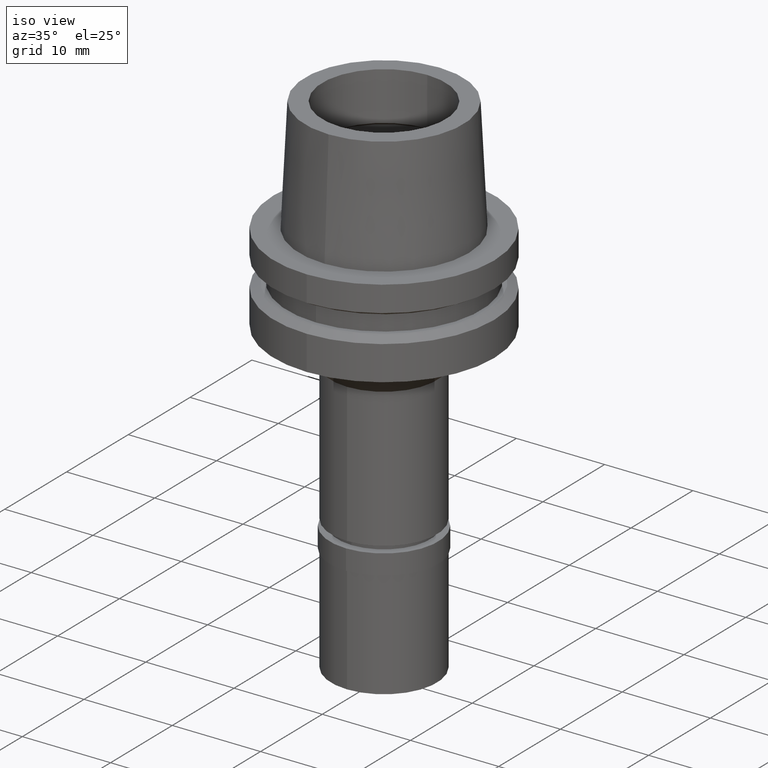
[diagram: clean part render]
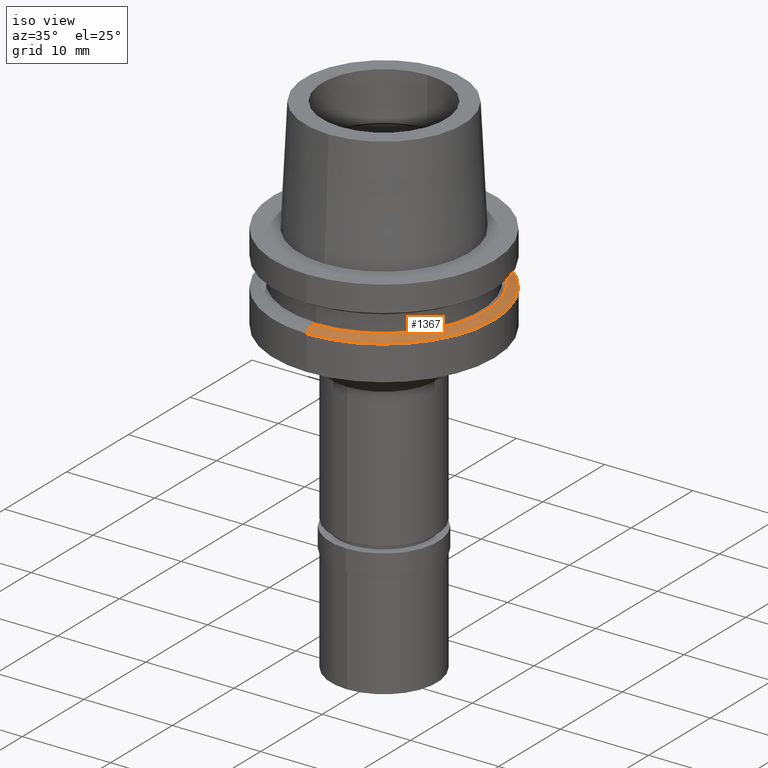
[diagram: same view with one face highlighted and labeled with its STEP entity id]
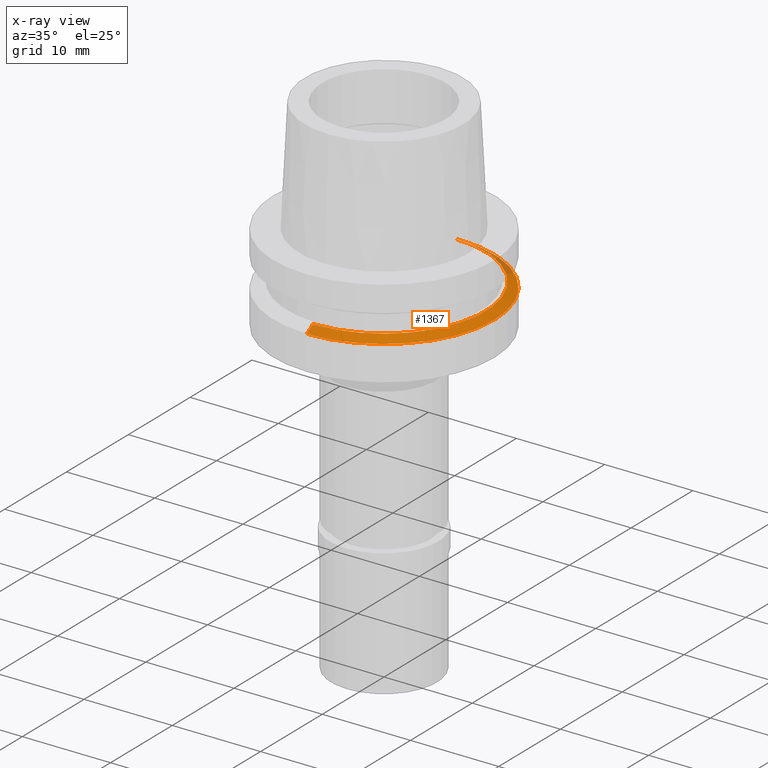
[diagram: x-ray of the same camera — body ghosted, the highlighted face saturated]
A machine part, iso view. The second image highlights one B-rep face of the part: STEP entity #1367.
The next image is the same camera in x-ray: the body ghosted, the highlighted face saturated — about 6% of this face is hidden behind the body in this view.
In plain terms, the highlighted conical surface has half-angle 60 deg.
Its self-contained STEP definition (entity closure, byte-faithful):
#159 = VECTOR ( 'NONE', #2613, 1000.000000000000114 ) ;
#190 = VERTEX_POINT ( 'NONE', #982 ) ;
#288 = CARTESIAN_POINT ( 'NONE',  ( 0.0000000000000000000, -12.50000000000000000, -6.087713240272000448 ) ) ;
#425 = DIRECTION ( 'NONE',  ( 0.0000000000000000000, 1.000000000000000000, 0.0000000000000000000 ) ) ;
#477 = EDGE_CURVE ( 'NONE', #190, #699, #2283, .T. ) ;
#525 = ORIENTED_EDGE ( 'NONE', *, *, #902, .T. ) ;
#616 = CARTESIAN_POINT ( 'NONE',  ( 0.0000000000000000000, 11.48205080757000118, -5.500000000002000178 ) ) ;
#659 = ORIENTED_EDGE ( 'NONE', *, *, #477, .T. ) ;
#699 = VERTEX_POINT ( 'NONE', #1022 ) ;
#702 = LINE ( 'NONE', #1769, #1331 ) ;
#783 = CARTESIAN_POINT ( 'NONE',  ( 0.0000000000000000000, 0.0000000000000000000, -6.087713240272999649 ) ) ;
#838 = CARTESIAN_POINT ( 'NONE',  ( 0.0000000000000000000, 0.0000000000000000000, -5.793856620138000402 ) ) ;
#866 = VERTEX_POINT ( 'NONE', #288 ) ;
#902 = EDGE_CURVE ( 'NONE', #699, #866, #702, .T. ) ;
#982 = CARTESIAN_POINT ( 'NONE',  ( 0.0000000000000000000, 11.48205080757000118, -5.500000000003000267 ) ) ;
#999 = CARTESIAN_POINT ( 'NONE',  ( 0.0000000000000000000, 12.50000000000000000, -6.087713240272000448 ) ) ;
#1022 = CARTESIAN_POINT ( 'NONE',  ( 0.0000000000000000000, -11.48205080757000118, -5.500000000003000267 ) ) ;
#1024 = AXIS2_PLACEMENT_3D ( 'NONE', #1081, #1093, #425 ) ;
#1081 = CARTESIAN_POINT ( 'NONE',  ( 0.0000000000000000000, 0.0000000000000000000, -5.500000000003000267 ) ) ;
#1093 = DIRECTION ( 'NONE',  ( 0.0000000000000000000, 0.0000000000000000000, -1.000000000000000000 ) ) ;
#1121 = AXIS2_PLACEMENT_3D ( 'NONE', #783, #1372, #2244 ) ;
#1223 = ORIENTED_EDGE ( 'NONE', *, *, #1880, .F. ) ;
#1294 = CONICAL_SURFACE ( 'NONE', #2680, 11.99102540378000192, 1.047197551196400456 ) ;
#1331 = VECTOR ( 'NONE', #1587, 1000.000000000000114 ) ;
#1367 = ADVANCED_FACE ( 'NONE', ( #2674 ), #1294, .T. ) ;
#1372 = DIRECTION ( 'NONE',  ( 0.0000000000000000000, 0.0000000000000000000, -1.000000000000000000 ) ) ;
#1536 = ORIENTED_EDGE ( 'NONE', *, *, #1783, .F. ) ;
#1587 = DIRECTION ( 'NONE',  ( 0.0000000000000000000, -0.8660254037846089048, -0.4999999999997049027 ) ) ;
#1769 = CARTESIAN_POINT ( 'NONE',  ( 0.0000000000000000000, -11.48205080757000118, -5.500000000002000178 ) ) ;
#1783 = EDGE_CURVE ( 'NONE', #2524, #866, #2419, .T. ) ;
#1880 = EDGE_CURVE ( 'NONE', #190, #2524, #2467, .T. ) ;
#2058 = DIRECTION ( 'NONE',  ( 0.0000000000000000000, 0.0000000000000000000, -1.000000000000000000 ) ) ;
#2099 = DIRECTION ( 'NONE',  ( 0.0000000000000000000, -1.000000000000000000, 0.0000000000000000000 ) ) ;
#2244 = DIRECTION ( 'NONE',  ( 0.0000000000000000000, 1.000000000000000000, 0.0000000000000000000 ) ) ;
#2283 = CIRCLE ( 'NONE', #1024, 11.48205080757000118 ) ;
#2419 = CIRCLE ( 'NONE', #1121, 12.50000000000000000 ) ;
#2467 = LINE ( 'NONE', #616, #159 ) ;
#2524 = VERTEX_POINT ( 'NONE', #999 ) ;
#2599 = EDGE_LOOP ( 'NONE', ( #659, #525, #1536, #1223 ) ) ;
#2613 = DIRECTION ( 'NONE',  ( 0.0000000000000000000, 0.8660254037846089048, -0.4999999999997049027 ) ) ;
#2674 = FACE_OUTER_BOUND ( 'NONE', #2599, .T. ) ;
#2680 = AXIS2_PLACEMENT_3D ( 'NONE', #838, #2058, #2099 ) ;